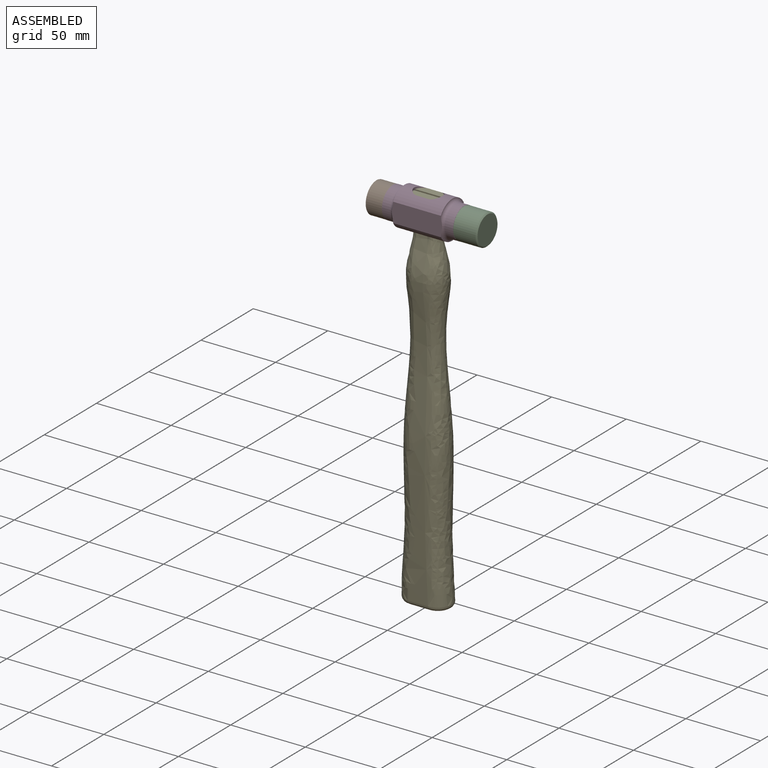
[diagram: assembled view]
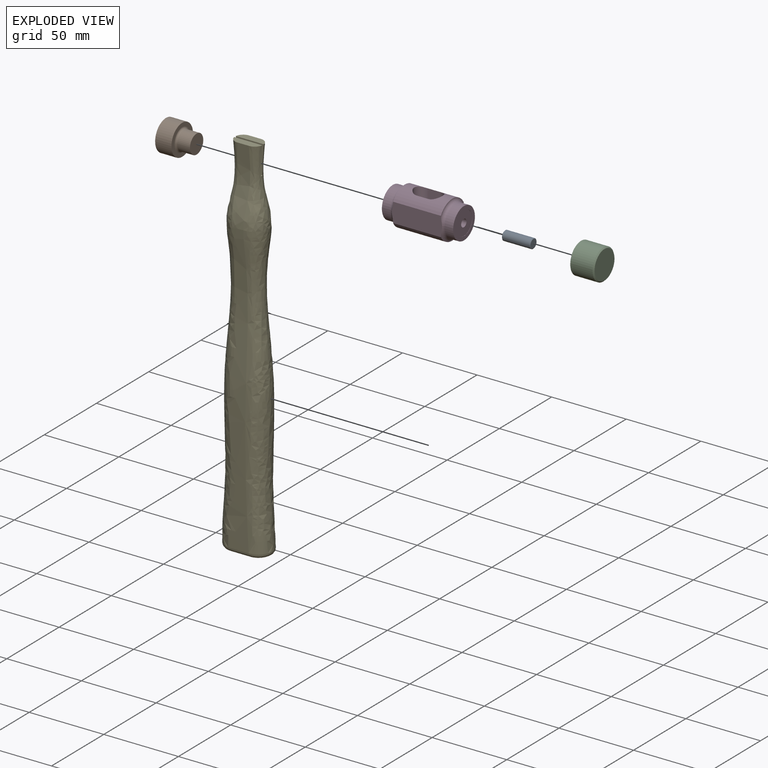
[diagram: exploded view]
GUIDED TOUR — MATED ASSEMBLY (Onshape document 58df03089acc530f8523b662, AutoMate assembly 58df03089acc530f8523b662_060a3081b921698165c3c467_dd952098a8696cf6e83c57d5_default)

This assembly has 5 components, labeled P0..P4 below (a component is one placed occurrence of a part; the same part can appear more than once), held together by 7 mates. A mate is a constraint between two components; its type names the relative motion it leaves free:
  CYLINDRICAL — leaves both rotation about and translation along the listed axis free,
  PARALLEL — keeps the two listed directions parallel,
  PLANAR — leaves sliding in the plane through the listed point (normal = the listed direction) and rotation about that normal free.
Axis/direction vectors are unit vectors and 'through' points are millimeter coordinates, both in the assembly's world frame.

MATES
  1. PLANAR "Planar 3": P2 <-> P3, direction (-1.000, 0.000, 0.000) through (26.51, 35.50, -14.22) mm
  2. CYLINDRICAL "Cylindrical 1": P3 <-> P1, axis (-1.000, 0.000, 0.000) through (-14.89, 35.50, -14.22) mm
  3. PLANAR "Planar 2": P3 <-> P4, direction (-1.000, 0.000, 0.000) through (2.64, 29.94, -2.80) mm
  4. PARALLEL "Parallel 1": P3 <-> P4, direction (0.000, -1.000, 0.000) through (2.64, 41.06, -14.22) mm
  5. PLANAR "Planar 1": P3 <-> P1, direction (-1.000, 0.000, 0.000) through (-21.24, 35.50, -14.22) mm
  6. CYLINDRICAL "Cylindrical 3": P3 <-> P0, axis (1.000, 0.000, 0.000) through (26.39, 35.50, -14.22) mm
  7. CYLINDRICAL "Cylindrical 2": P0 <-> P2, axis (-1.000, 0.000, 0.000) through (32.23, 35.50, -14.22) mm

ASSEMBLY ORDER
  1. P3 — the base component [order heuristic]
  2. P1 — core [order heuristic]
  3. P4 — core [order heuristic]
  4. P0 [order verified]
  5. P2 [order verified]
Order-tag legend:
  [order verified] — this step's position reverses a verified removal order: the component was checked to insert without passing through the ones already placed.
  [order heuristic] — the first 3 components form the assembly's core: parts whose collision-free extraction could not be verified, listed in mate-graph order.

Of the 5 components, 2 carry the full construction recipe — the FeatureScript program that regenerates the part's solid from scratch; the rest are supplied as boundary geometry only.
Each toured component is shown spotlighted twice — in the assembled view, then in the exploded view, where a leader line traces a displaced component back to its assembled socket (saturated green if recipe-attached, orange if geometry-only; every other component desaturated gray) — followed by its recipe or geometry summary and the mates that hold it.
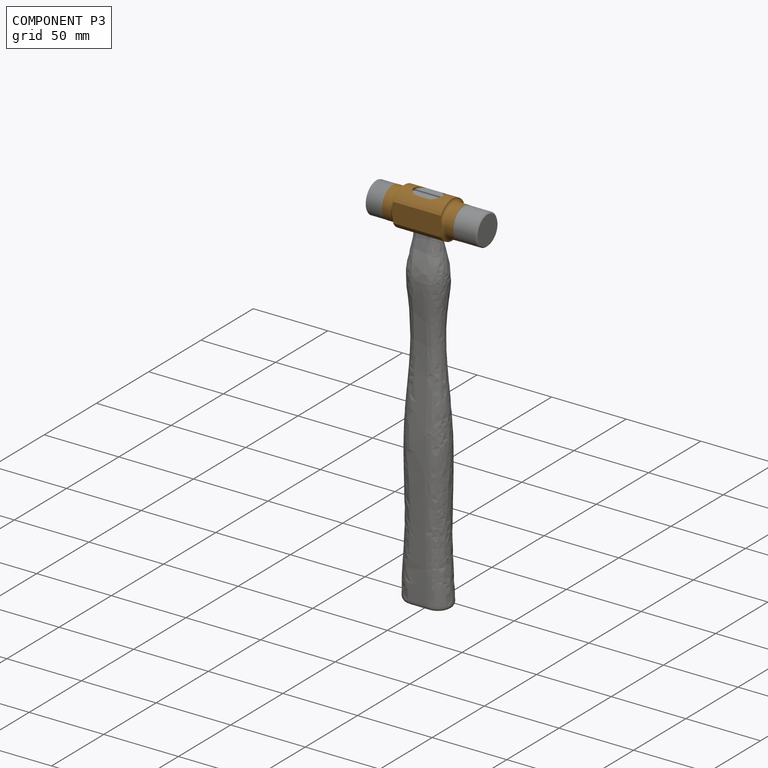
[diagram: component P3 — assembled]
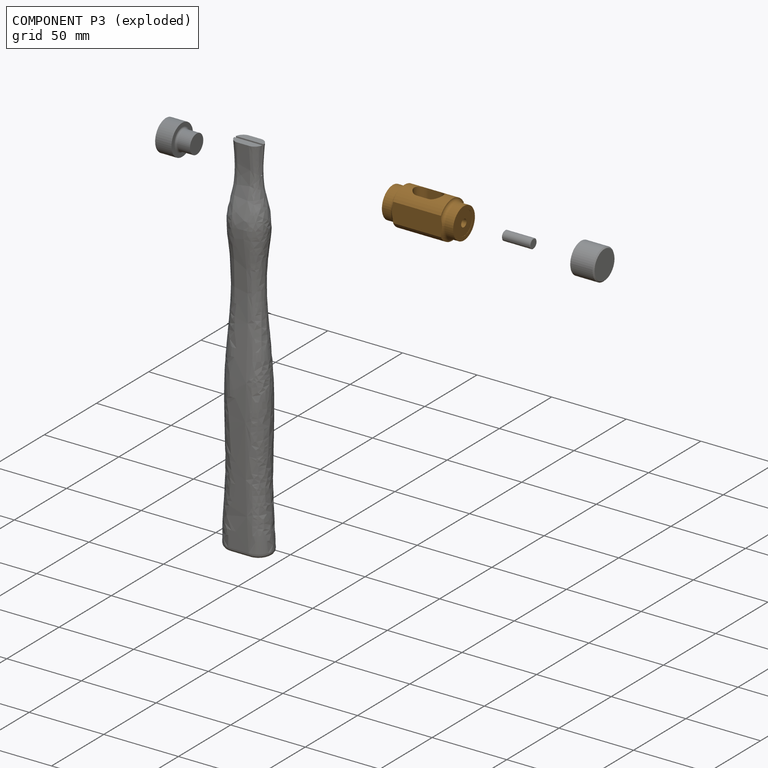
[diagram: component P3 — exploded]
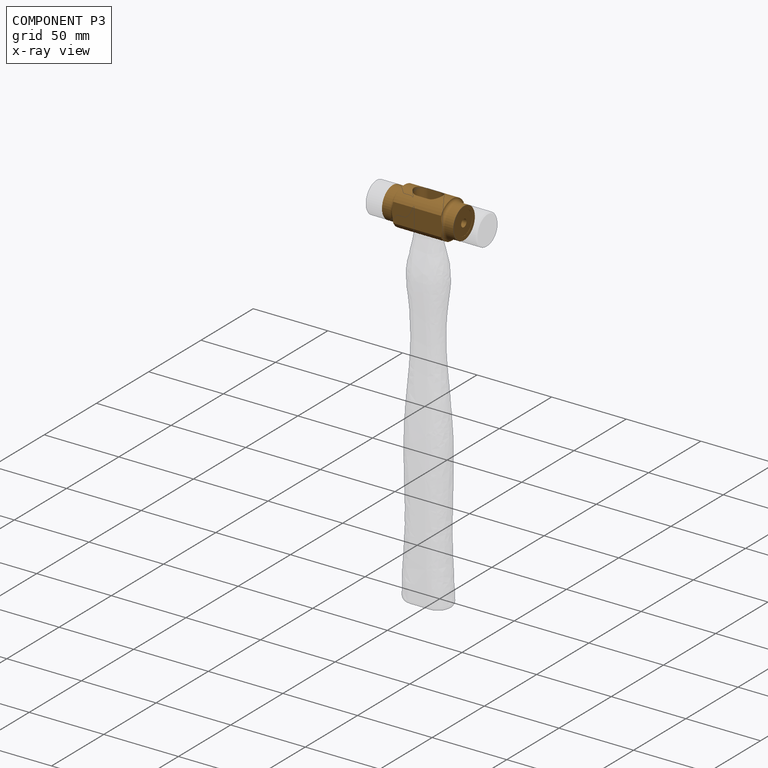
[diagram: component P3 — x-ray view]
COMPONENT P3 — geometry summary (no construction recipe available for this part):
  bounding box: 47.8 x 31.0 x 31.0 mm
  B-rep topology: 1 solid, 20 faces, 89 edges
  volume: 14284 mm^3 (31% of its bounding box)
  symmetry: 2-fold rotationally symmetric about the x axis; mirror-symmetric across its y mid-plane, z mid-plane
Held by: PLANAR mate "Planar 3" to P2; CYLINDRICAL mate "Cylindrical 1" to P1; PLANAR mate "Planar 2" to P4; PARALLEL mate "Parallel 1" to P4; PLANAR mate "Planar 1" to P1; CYLINDRICAL mate "Cylindrical 3" to P0.
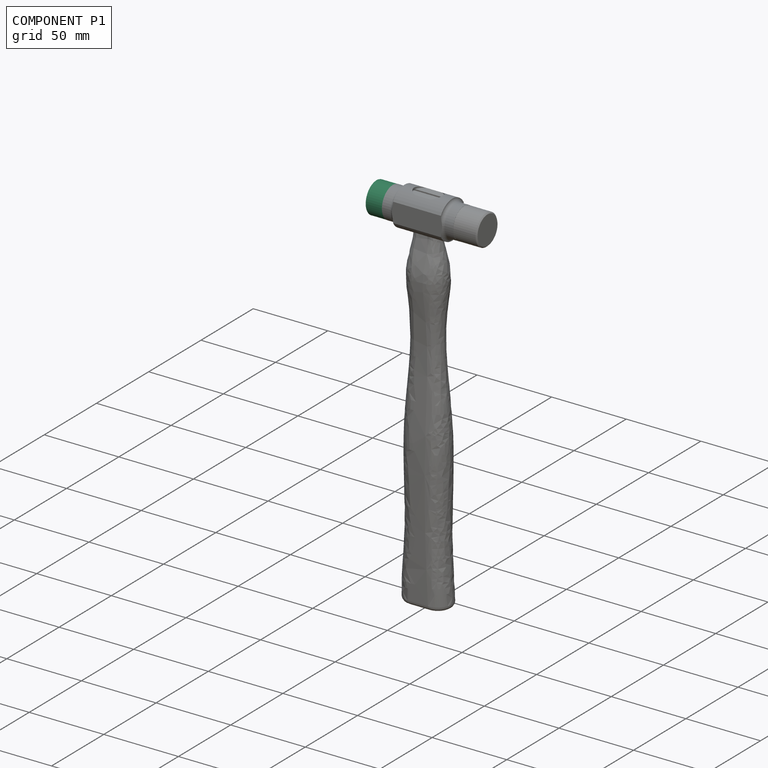
[diagram: component P1 — assembled]
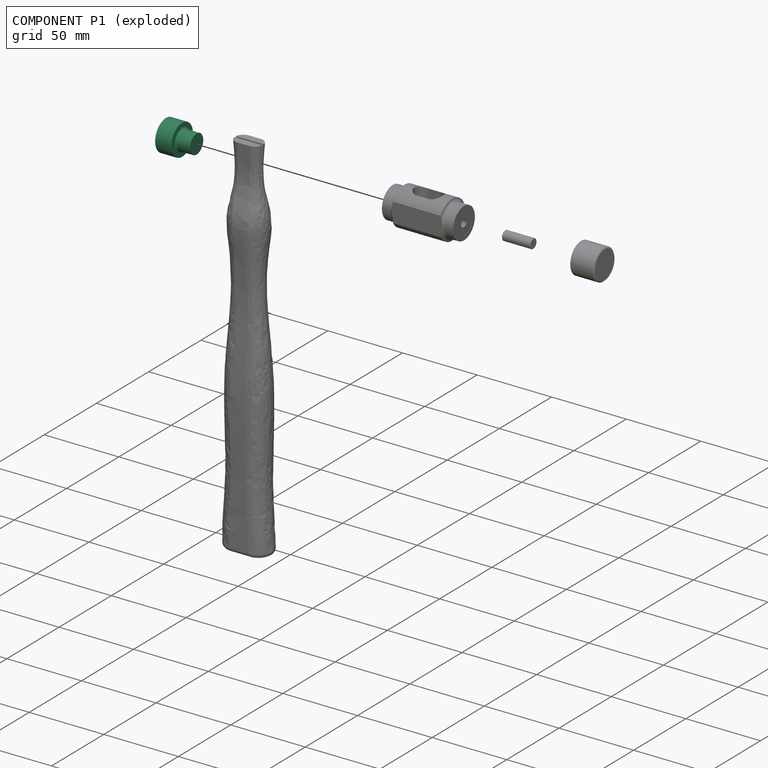
[diagram: component P1 — exploded]
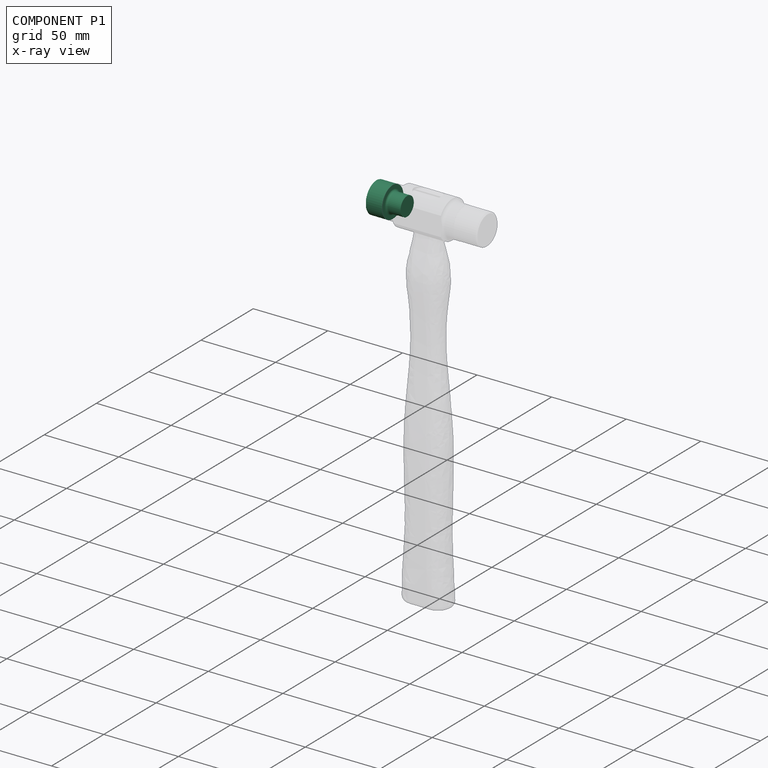
[diagram: component P1 — x-ray view]
COMPONENT P1 — recipe-attached (CADFS 00669738, mesh-verified: the recipe's output STEP matches this component's geometry to below the mesh-comparison resolution (tessellation chordal tolerance ~0.055 mm)).
Held by: CYLINDRICAL mate "Cylindrical 1" to P3; PLANAR mate "Planar 1" to P3.
Construction recipe (FeatureScript — the CAD program that rebuilds this solid; sketch coordinates are in the units given by the * unit suffixes, e.g. mm):

FeatureScript 1549;
import(path : "onshape/std/geometry.fs", version : "1549.0");
import(path : "onshape/std/common.fs", version : "1549.0");
const mm = millimeter;
const VERTEX = EntityType.VERTEX;
const EDGE = EntityType.EDGE;
const FACE = EntityType.FACE;
const BODY = EntityType.BODY;
function v(x, y){return vector(x, y);}
function OD(order){return orderDisambiguation(order);}
function OSD(set){return originalSetDisambiguation(set);}
function TD(topology){return topologyDisambiguation(topology);}
function TDD(query){return trueDependencyDisambiguation(query);}
function sQuery(a, b, c) {return sketchEntityQuery(a, b, c);}

annotation { "Feature Type Name" : "Feature", "Feature Type Description" : "" }
export const myFeature = defineFeature(function(context is Context, id is Id, definition is map)
    precondition{}
    {
        {
            var Q0;
            Q0=qCreatedBy(makeId("Front.planeOp"),FACE);
            var sketch = newSketch(context, id + "F0", { "sketchPlane" : qUnion([Q0])});
            skLineSegment(sketch, "E0", {"start": v(11.18, 0) * mm, "end": v(-24.9, 0) * mm, "construction": true});
            skLineSegment(sketch, "E1.bottom", {"start": v(0, 0) * mm, "end": v(-22.2, 0) * mm});
            skLineSegment(sketch, "E1.top", {"start": v(-9.65, 10.31) * mm, "end": v(-20.57, 10.31) * mm});
            skLineSegment(sketch, "E1.left", {"start": v(0, 0) * mm, "end": v(0, 6.38) * mm});
            skLineSegment(sketch, "E2", {"start": v(0, 6.38) * mm, "end": v(-8.38, 6.38) * mm});
            skLineSegment(sketch, "E3", {"start": v(-9.65, 7.65) * mm, "end": v(-9.65, 10.31) * mm});
            skPoint(sketch, "E4.visualSharp", {"position": v(-9.65, 6.38) * mm});
            skArc(sketch, "E4.filletArc", {"start": v(-9.65, 7.65) * mm, "mid": v(-9.28, 6.75) * mm, "end": v(-8.38, 6.38) * mm});
            skArc(sketch, "E5", {"start": v(-20.57, 10.31) * mm, "mid": v(-21.8, 5.22) * mm, "end": v(-22.2, 0) * mm});
            skSolve(sketch);
        }
        {
            var Q0;
            Q0=qSketchRegion(id+"F0",true);
            var Q1;
            Q1=sQuery(id+"F0.wireOp",EDGE,"E0");
            revolve(context, id + "F1", {"entities" : qUnion([Q0]), "axis" : qUnion([Q1]), "revolveType" : RevolveType.FULL});
        }
    });
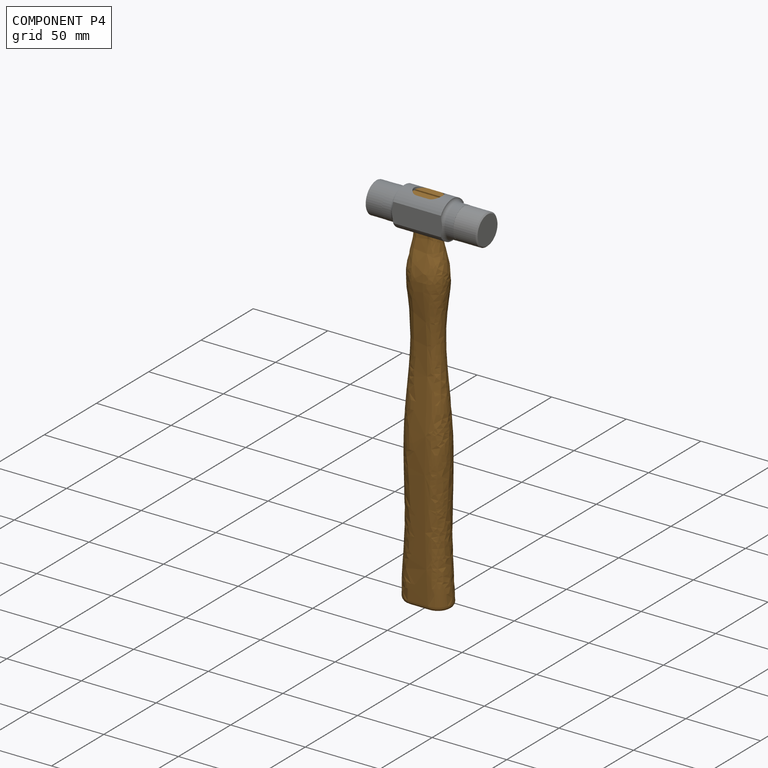
[diagram: component P4 — assembled]
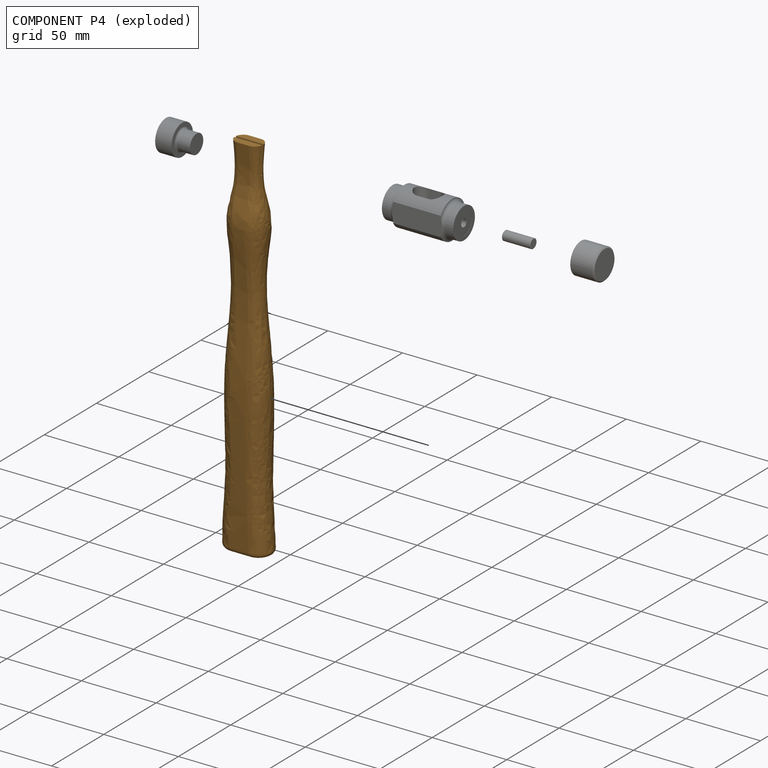
[diagram: component P4 — exploded]
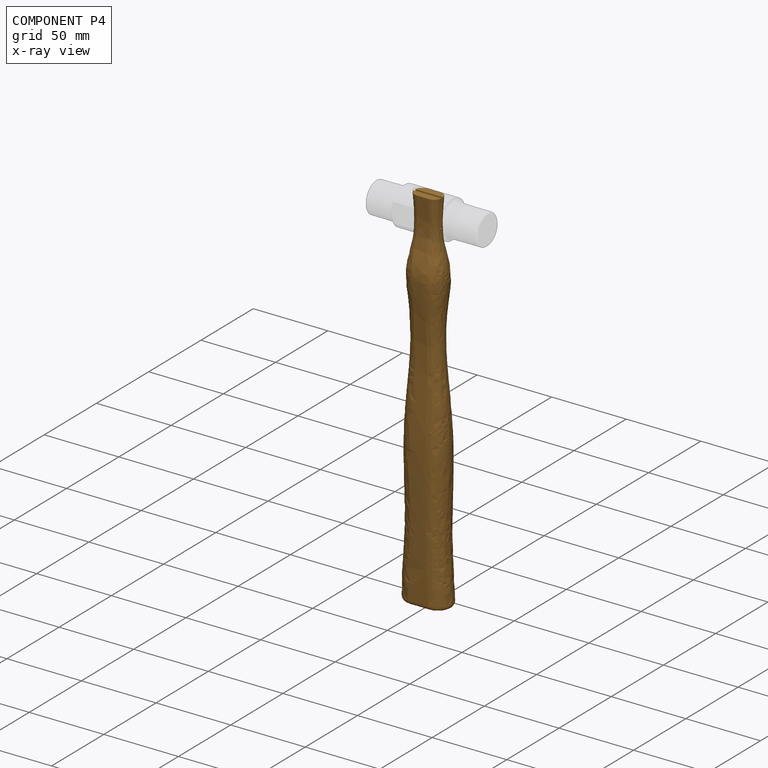
[diagram: component P4 — x-ray view]
COMPONENT P4 — geometry summary (no construction recipe available for this part):
  bounding box: 247.7 x 31.8 x 20.2 mm
  B-rep topology: 1 solid, 8 faces, 58 edges
  volume: 93288 mm^3 (59% of its bounding box)
  symmetry: 2-fold rotationally symmetric about the x axis; mirror-symmetric across its y mid-plane, z mid-plane
Held by: PLANAR mate "Planar 2" to P3; PARALLEL mate "Parallel 1" to P3.
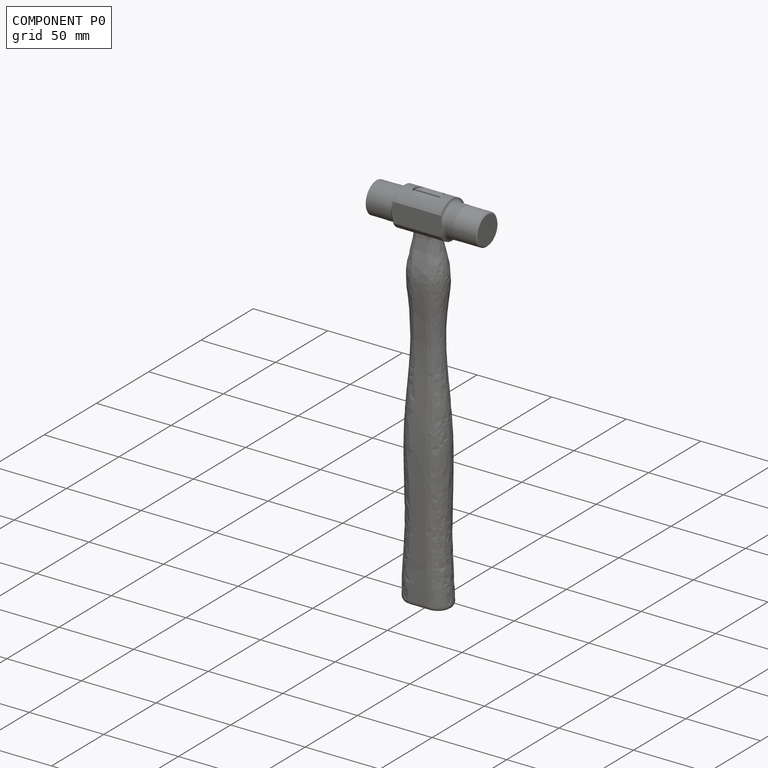
[diagram: component P0 — assembled]
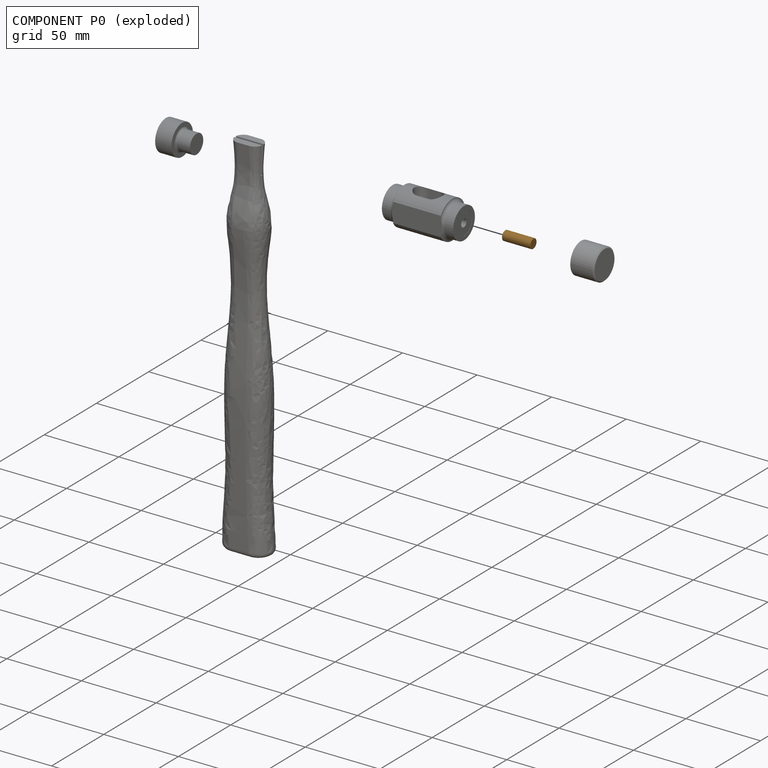
[diagram: component P0 — exploded]
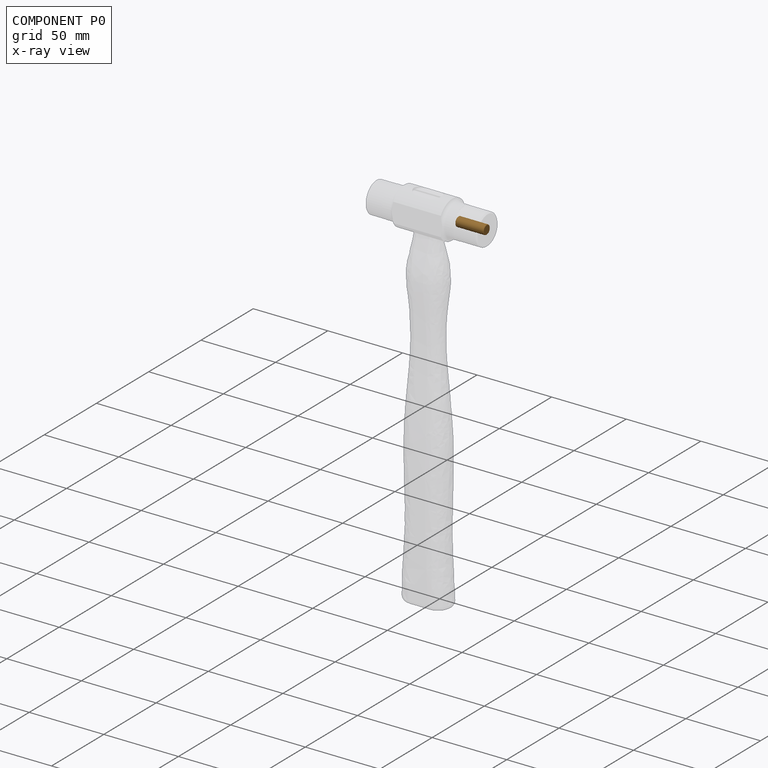
[diagram: component P0 — x-ray view]
COMPONENT P0 — geometry summary (no construction recipe available for this part):
  bounding box: 19.1 x 6.4 x 6.4 mm
  B-rep topology: 1 solid, 5 faces, 14 edges
  volume: 602 mm^3 (78% of its bounding box)
  symmetry: revolution-symmetric about the x axis through its bounding-box center; 2-fold rotationally symmetric about the y axis; 2-fold rotationally symmetric about the z axis; mirror-symmetric across its x mid-plane, y mid-plane, z mid-plane
Held by: CYLINDRICAL mate "Cylindrical 3" to P3; CYLINDRICAL mate "Cylindrical 2" to P2.
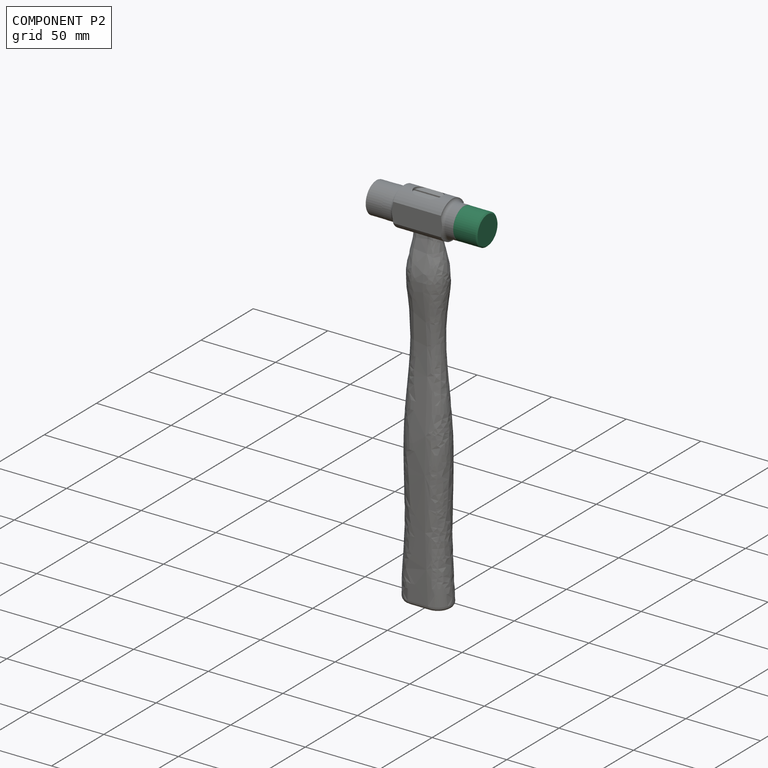
[diagram: component P2 — assembled]
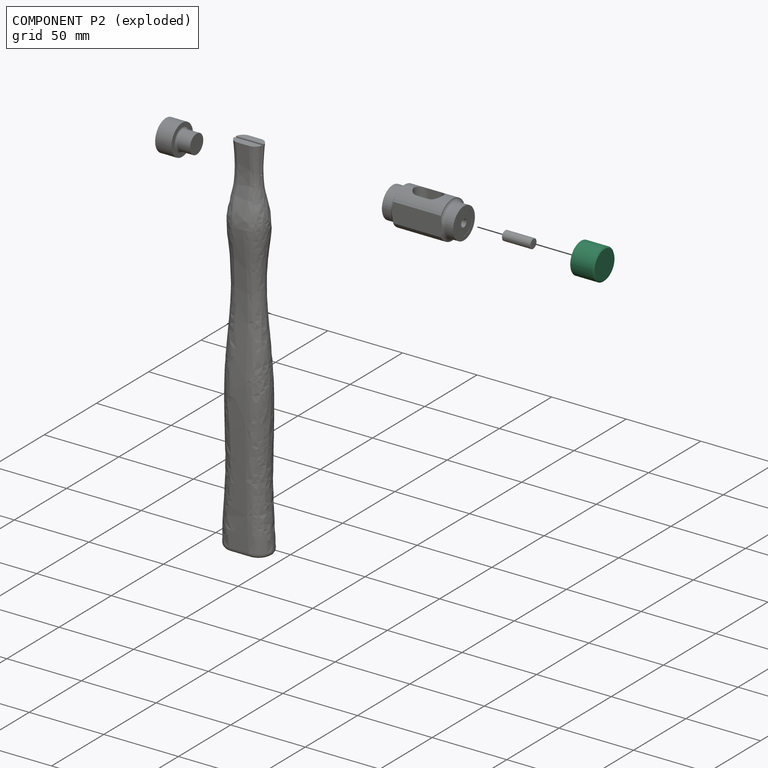
[diagram: component P2 — exploded]
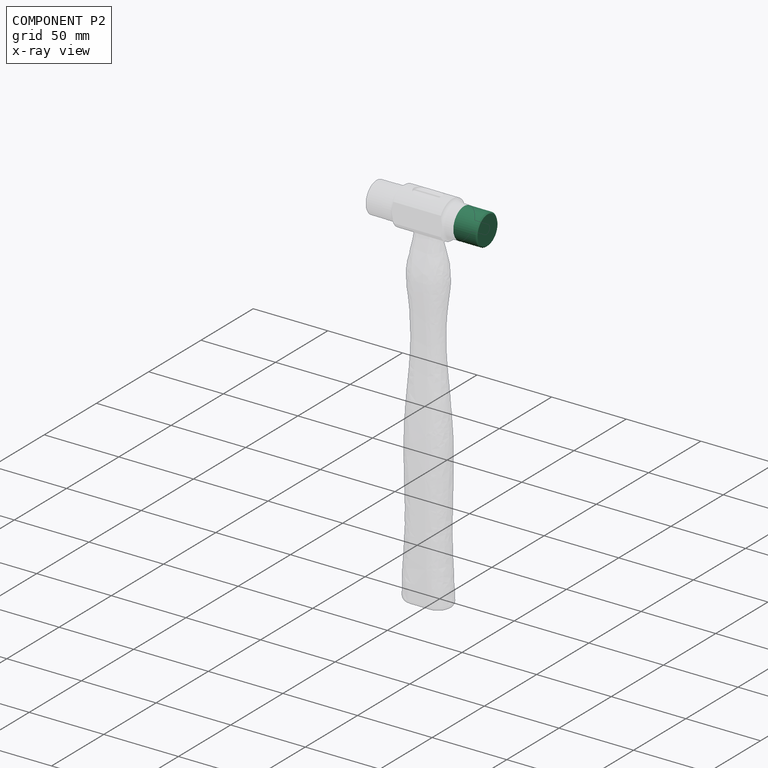
[diagram: component P2 — x-ray view]
COMPONENT P2 — recipe-attached (CADFS 00669727, mesh-verified: the recipe's output STEP matches this component's geometry to below the mesh-comparison resolution (tessellation chordal tolerance ~0.0497 mm)).
Held by: PLANAR mate "Planar 3" to P3; CYLINDRICAL mate "Cylindrical 2" to P0.
Construction recipe (FeatureScript — the CAD program that rebuilds this solid; sketch coordinates are in the units given by the * unit suffixes, e.g. mm):

FeatureScript 1549;
import(path : "onshape/std/geometry.fs", version : "1549.0");
import(path : "onshape/std/common.fs", version : "1549.0");
const mm = millimeter;
const VERTEX = EntityType.VERTEX;
const EDGE = EntityType.EDGE;
const FACE = EntityType.FACE;
const BODY = EntityType.BODY;
function v(x, y){return vector(x, y);}
function OD(order){return orderDisambiguation(order);}
function OSD(set){return originalSetDisambiguation(set);}
function TD(topology){return topologyDisambiguation(topology);}
function TDD(query){return trueDependencyDisambiguation(query);}
function sQuery(a, b, c) {return sketchEntityQuery(a, b, c);}

annotation { "Feature Type Name" : "Feature", "Feature Type Description" : "" }
export const myFeature = defineFeature(function(context is Context, id is Id, definition is map)
    precondition{}
    {
        {
            var Q0;
            Q0=qCreatedBy(makeId("Front.planeOp"),FACE);
            var sketch = newSketch(context, id + "F0", { "sketchPlane" : qUnion([Q0])});
            skLineSegment(sketch, "E0.bottom", {"start": v(0, 0) * mm, "end": v(15.75, 0) * mm});
            skLineSegment(sketch, "E0.top", {"start": v(0, 10.31) * mm, "end": v(14.99, 10.31) * mm});
            skLineSegment(sketch, "E0.left", {"start": v(0, 0) * mm, "end": v(0, 10.31) * mm});
            skLineSegment(sketch, "E0.right", {"start": v(15.75, 0) * mm, "end": v(15.75, 9.55) * mm});
            skLineSegment(sketch, "E1", {"start": v(14.99, 10.31) * mm, "end": v(15.75, 9.55) * mm});
            skPoint(sketch, "E2.orphan", {"position": v(15.75, 10.31) * mm});
            skLineSegment(sketch, "E3", {"start": v(0, 0) * mm, "end": v(19.01, 0) * mm, "construction": true});
            skSolve(sketch);
        }
        {
            var Q0;
            Q0=qSketchRegion(id+"F0",true);
            var Q1;
            Q1=sQuery(id+"F0.wireOp",EDGE,"E3");
            revolve(context, id + "F1", {"entities" : qUnion([Q0]), "axis" : qUnion([Q1]), "revolveType" : RevolveType.FULL});
        }
        {
            var Q0;
            Q0=makeQuery(id+"F1.opRevolve","SWEPT_FACE",FACE,{"disambiguationData":[OSD([sQuery(id+"F0.wireOp",EDGE,"E0.left")])]});
            var sketch = newSketch(context, id + "F2", { "sketchPlane" : qUnion([Q0])});
            skPoint(sketch, "E4", {"position": v(0, 0) * mm});
            skSolve(sketch);
        }
        {
            var Q0;
            Q0=sQuery(id+"F2.wireOp",VERTEX,"E4");
            var Q1;
            Q1=makeQuery(id+"F1.opRevolve","SWEPT_BODY",BODY,{"disambiguationData":[OSD([sQuery(id+"F0.wireOp",EDGE,"E0.bottom"),sQuery(id+"F0.wireOp",EDGE,"E0.top"),sQuery(id+"F0.wireOp",EDGE,"E0.left"),sQuery(id+"F0.wireOp",EDGE,"E0.right"),sQuery(id+"F0.wireOp",EDGE,"E1")])]});
            hole(context, id + "F3", {"style" : HoleStyle.SIMPLE, "endStyle" : HoleEndStyle.BLIND, "standardTappedOrClearance" : lookupTablePath({ "standard" : "ANSI", "engagement" : "75%", "pitch" : "20 tpi", "size" : "1/4", "type" : "Tapped" }), "standardBlindInLast" : lookupTablePath({ "standard" : "ANSI", "engagement" : "75%", "pitch" : "20 tpi", "size" : "1/4", "type" : "Tapped" }), "holeDiameter" : 5.1 * mm, "majorDiameter" : 6.35 * mm, "showTappedDepth" : true, "holeDepth" : 12.7 * mm, "isTappedThrough" : true, "tappedDepth" : 8.9 * mm, "tapClearance" : 3, "locations" : qUnion([Q0]), "scope" : qUnion([Q1])});
        }
    });
PROVENANCE & LICENSES
Assembly (occurrences, transforms, mates, per-part STEP geometry): AutoMate dataset, Zenodo record 7776208, CC0.
Construction recipes: CADFS (HuggingFace VladPyatov/CADFS, CC-BY-4.0, layered over the ABC dataset), FeatureScript reconstruction programs keyed by ABC model id.
Join: ABC meta listings map ABC model id -> Onshape documentId; within a shared document, parts are matched by geometric signature (bounding-box dims + volume at 0.1% relative tolerance, exact B-rep face/solid counts).
Verification: 2 of this assembly's 5 components carry a recipe attachment, and every attachment is mesh-verified: the CADFS STEP and the AutoMate member STEP were compared as meshes in their shared local frame (symmetric sampled-point-to-mesh distance); worst across the 2 attachments: below the mesh-comparison resolution (tessellation chordal tolerance ~0.055 mm) on a 37 mm part.
Renders: orthographic iso camera (az 35 / el 25); the floor grid conveys scale (grid pitch printed in each image; no ruler). In the exploded view each component is displaced by its stored offset vector: the offsets alone carry the explosion direction (mate normal/axis signs are not orientation cues and do not encode it), and separation distances are assigned per mate-chain, not proportionally to assembly-order depth.
